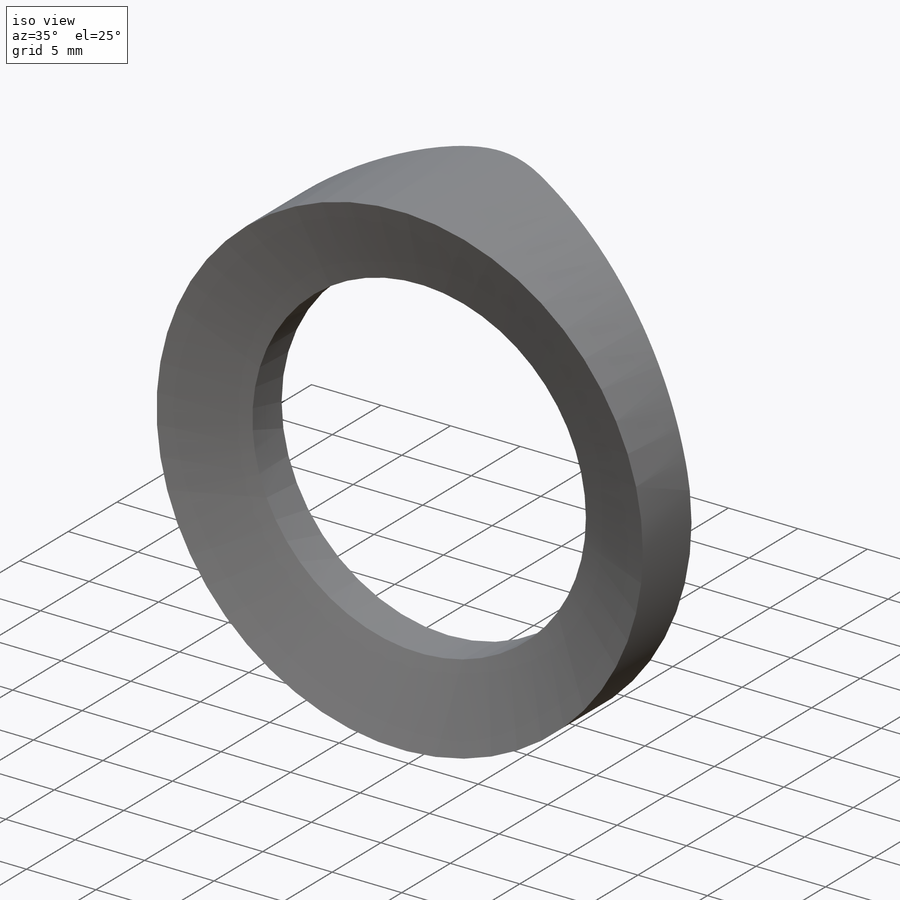
[diagram: iso view]
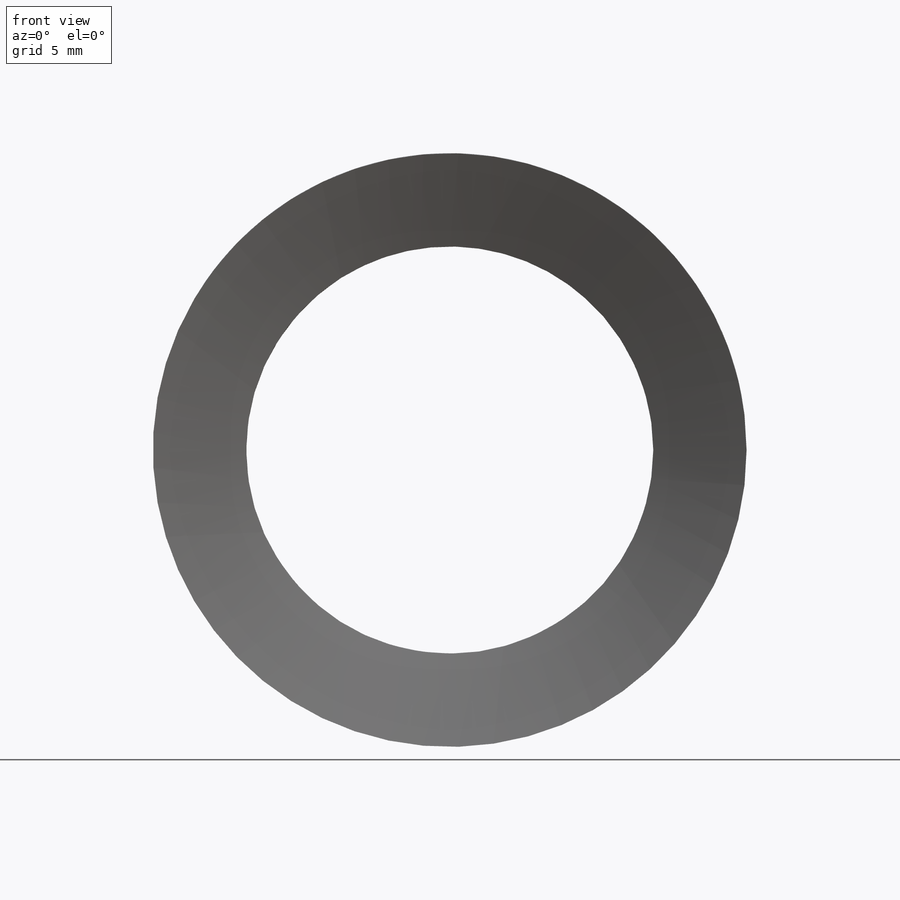
[diagram: front view]
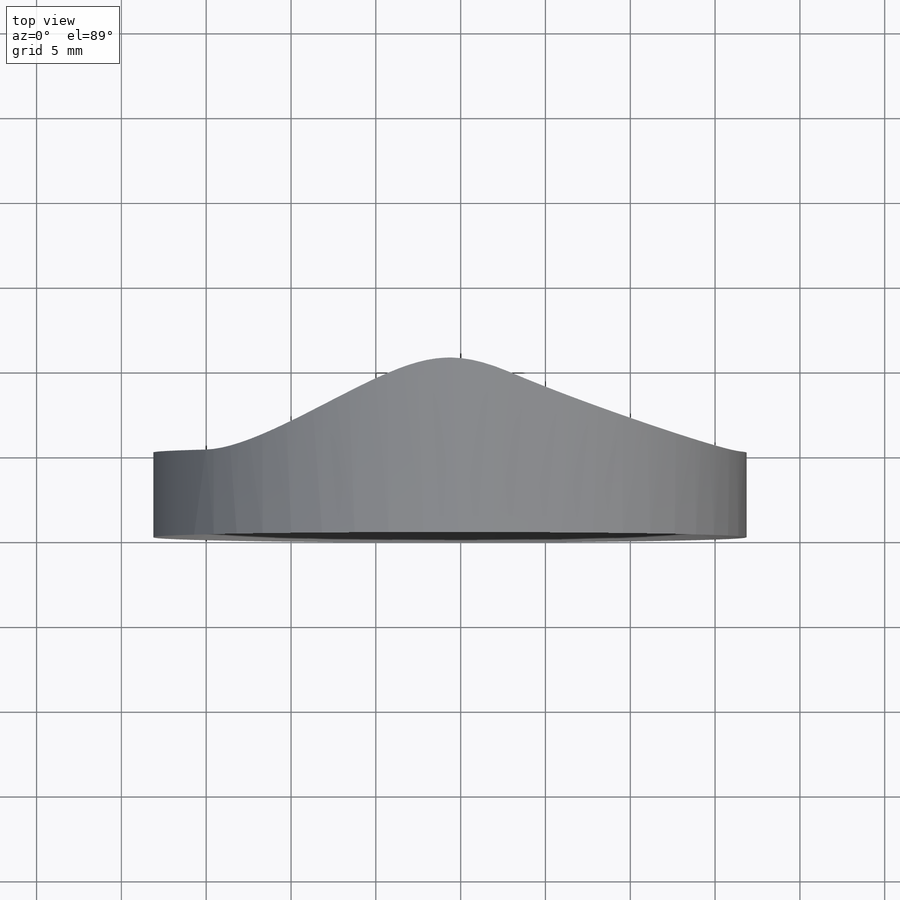
[diagram: top view]
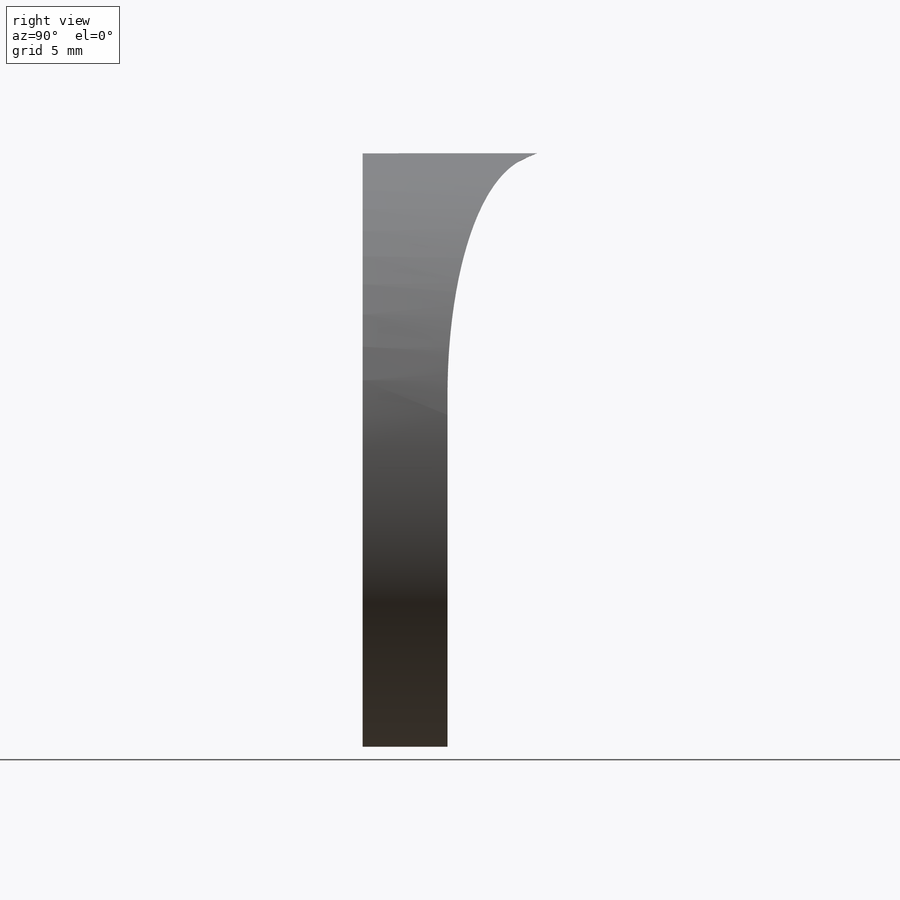
[diagram: right view]
SOLIDWORKS PART (.sldprt)
format: sldprt  version: not decoded by parser v0  size: 294,912 bytes
history: native  units: mm
features: sketch x6, cut_extrude x4, material x1, extrude x1, fillet x1, plane x1, revolve x1, chamfer x1, boolean_combine x1 (+11 scaffold rows collapsed)
feature tree (28):
  scaffold x11  (default folders/planes/origin — collapsed)
  material  "Material <not specified>"
  sketch  "Sketch1"  dims[D1=50.0mm D2=36.0mm]
  extrude  "Boss-Extrude1"  Depth=15mm
  sketch  "Sketch3"  dims[c1.D1=24.0mm c1.D2=7.0293mm c1.D3=~15.985626mm c2.D2=7.0293mm c2.D3=14.3572mm]
  cut_extrude  "Cut-Extrude2"  Depth=10mm
  fillet  "Fillet1"  Radius=8mm
  plane  "Plane1"  Offset=14.3572mm
  sketch  "Sketch4"  dims[c1.D1=17.5mm c1.D2=7.5mm c1.D3=9.5mm c1.D4=10.1mm c1.D5=12.0mm c2.D4=4.0mm c2.D2=5.0mm c2.D3=3.0mm c3.D4=3.0mm]
  revolve  "Revolve1"  Angle=360deg
  sketch  "Sketch2"  dims[D1=41.5mm D2=60.0mm]
  cut_extrude  "Cut-Extrude1"  Depth=10mm
  sketch  "Sketch5"  dims[D5=1.0mm D8=13.25mm D1=17.0mm D2=14.0mm D3=10.0mm D4=2.0mm D6=10.5mm D7=17.0mm]
  cut_extrude  "Cut-Extrude3"  Depth=10mm
  sketch  "Sketch6"  dims[D1=3.0mm D2=3.0mm]
  cut_extrude  "Cut-Extrude4"  Depth=12mm
  chamfer  "Chamfer1"  Distance=2mm Angle=45deg
  boolean_combine  "Combine1"
decode coverage: 14 of 15 modeling features carry decoded parameters
note: ~ marks probable driven/reference dimensions
note: suppression state not decoded; provenance and decode notes live in map.json
